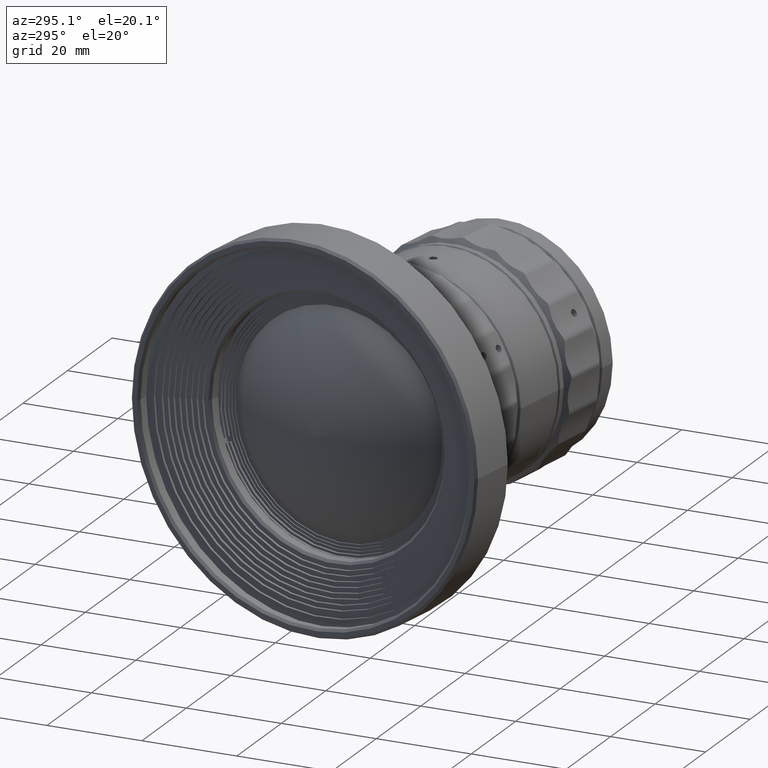
[diagram: clean part render]
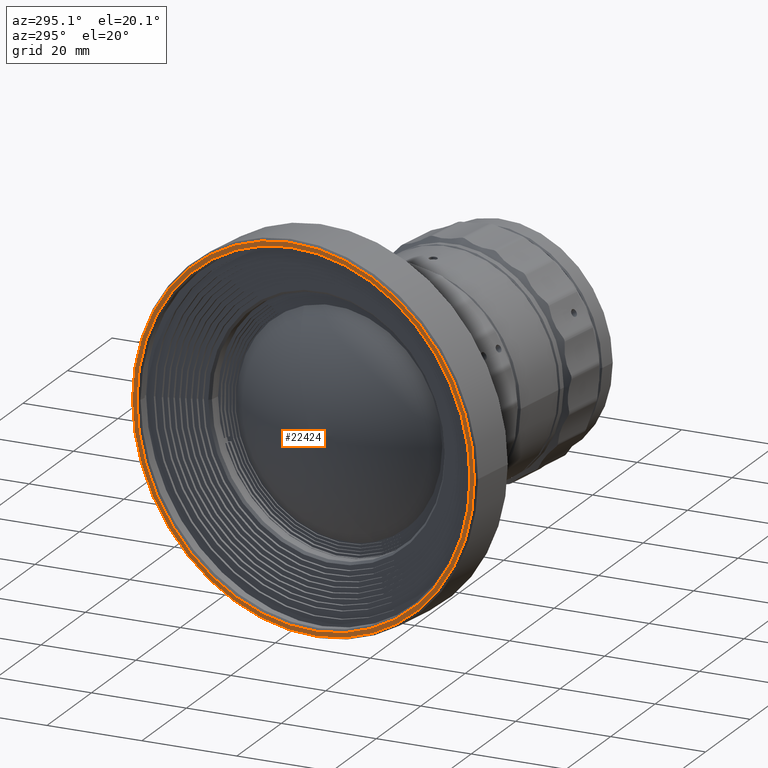
[diagram: same view with one face highlighted and labeled with its STEP entity id]
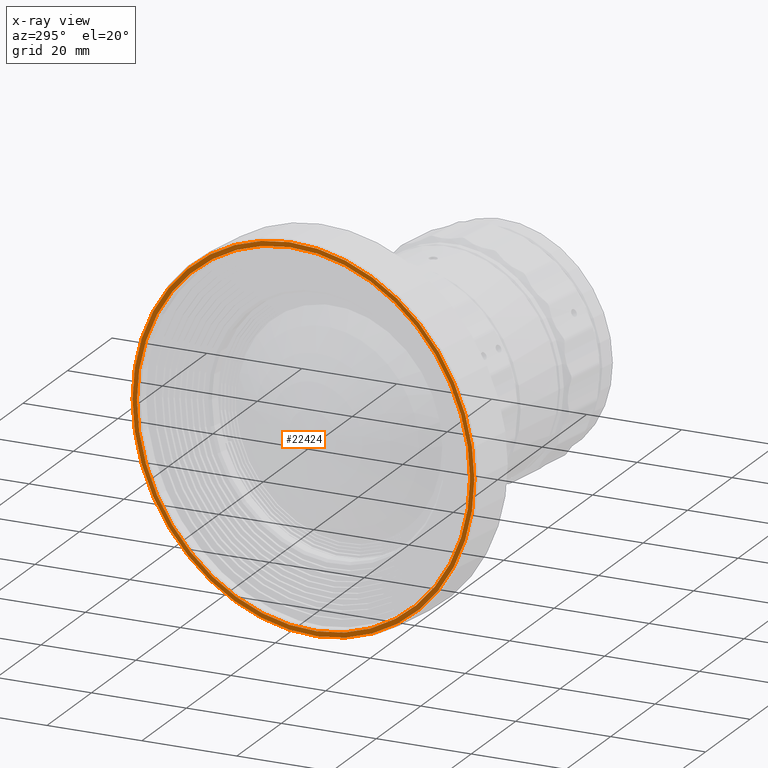
[diagram: x-ray of the same camera — body ghosted, the highlighted face saturated]
A machine part, auxiliary view. The second image highlights one B-rep face of the part: STEP entity #22424.
The next image is the same camera in x-ray: the body ghosted, the highlighted face saturated — about 0% of this face is hidden behind the body in this view.
In plain terms, the highlighted planar face has unit normal (0.9869, -0.1612, 0).
Its self-contained STEP definition (entity closure, byte-faithful):
#235 = FACE_OUTER_BOUND ( 'NONE', #42756, .T. ) ;
#337 = CARTESIAN_POINT ( 'NONE',  ( 100.7508754868545964, -25.57386101788690169, -18.29668510068000131 ) ) ;
#2143 = CIRCLE ( 'NONE', #53522, 38.49980199999998831 ) ;
#4830 = DIRECTION ( 'NONE',  ( 0.9869211278471834436, -0.1612038690876970715, 0.000000000000000000 ) ) ;
#6033 = VERTEX_POINT ( 'NONE', #33930 ) ;
#8167 = DIRECTION ( 'NONE',  ( -0.9869211278471834436, 0.1612038690876970715, 0.000000000000000000 ) ) ;
#8189 = CIRCLE ( 'NONE', #25335, 39.49980200000001673 ) ;
#9776 = DIRECTION ( 'NONE',  ( 0.9869211278471834436, -0.1612038690876969049, 0.000000000000000000 ) ) ;
#10814 = DIRECTION ( 'NONE',  ( 0.1612038690876967939, 0.9869211278471835547, 0.000000000000000000 ) ) ;
#11325 = DIRECTION ( 'NONE',  ( -0.9869211278471835547, 0.1612038690876969049, 0.000000000000000000 ) ) ;
#14235 = CARTESIAN_POINT ( 'NONE',  ( 100.7508754868545964, -25.57386101788690169, -18.29668510068000131 ) ) ;
#14936 = EDGE_CURVE ( 'NONE', #39987, #6033, #15041, .T. ) ;
#15041 = CIRCLE ( 'NONE', #51160, 39.49980200000001673 ) ;
#19177 = CARTESIAN_POINT ( 'NONE',  ( 100.7508754868545964, -25.57386101788690169, -18.29668510068000131 ) ) ;
#20551 = ORIENTED_EDGE ( 'NONE', *, *, #43315, .F. ) ;
#22321 = FACE_BOUND ( 'NONE', #46509, .T. ) ;
#22424 = ADVANCED_FACE ( 'NONE', ( #22321, #235 ), #55006, .F. ) ;
#23027 = DIRECTION ( 'NONE',  ( 0.1612038690876970992, 0.9869211278471834436, 0.000000000000000000 ) ) ;
#25335 = AXIS2_PLACEMENT_3D ( 'NONE', #19177, #51590, #10814 ) ;
#25786 = ORIENTED_EDGE ( 'NONE', *, *, #14936, .T. ) ;
#26024 = EDGE_CURVE ( 'NONE', #45744, #32912, #2143, .T. ) ;
#26074 = CARTESIAN_POINT ( 'NONE',  ( 100.7508754868545964, -25.57386101788690169, -18.29668510068000131 ) ) ;
#27963 = DIRECTION ( 'NONE',  ( 0.000000000000000000, 0.000000000000000000, -1.000000000000000000 ) ) ;
#28108 = ORIENTED_EDGE ( 'NONE', *, *, #54633, .F. ) ;
#32912 = VERTEX_POINT ( 'NONE', #33137 ) ;
#33137 = CARTESIAN_POINT ( 'NONE',  ( 94.54455844534430753, -63.57012902962009804, -18.29668510068000131 ) ) ;
#33930 = CARTESIAN_POINT ( 'NONE',  ( 94.38335457625660752, -64.55705015746728748, -18.29668510068000131 ) ) ;
#33958 = DIRECTION ( 'NONE',  ( 0.1612038690876967939, 0.9869211278471835547, 0.000000000000000000 ) ) ;
#34345 = AXIS2_PLACEMENT_3D ( 'NONE', #14235, #9776, #27963 ) ;
#34368 = AXIS2_PLACEMENT_3D ( 'NONE', #26074, #8167, #49265 ) ;
#39987 = VERTEX_POINT ( 'NONE', #56487 ) ;
#41483 = CARTESIAN_POINT ( 'NONE',  ( 100.7508754868545964, -25.57386101788690169, -18.29668510068000131 ) ) ;
#42756 = EDGE_LOOP ( 'NONE', ( #20551, #25786 ) ) ;
#43315 = EDGE_CURVE ( 'NONE', #39987, #6033, #8189, .T. ) ;
#45005 = ORIENTED_EDGE ( 'NONE', *, *, #26024, .T. ) ;
#45744 = VERTEX_POINT ( 'NONE', #54813 ) ;
#46509 = EDGE_LOOP ( 'NONE', ( #28108, #45005 ) ) ;
#49265 = DIRECTION ( 'NONE',  ( 0.1612038690876970992, 0.9869211278471834436, 0.000000000000000000 ) ) ;
#49601 = CIRCLE ( 'NONE', #34368, 38.49980199999998831 ) ;
#51160 = AXIS2_PLACEMENT_3D ( 'NONE', #337, #11325, #33958 ) ;
#51590 = DIRECTION ( 'NONE',  ( 0.9869211278471835547, -0.1612038690876969049, 0.000000000000000000 ) ) ;
#53522 = AXIS2_PLACEMENT_3D ( 'NONE', #41483, #4830, #23027 ) ;
#54633 = EDGE_CURVE ( 'NONE', #45744, #32912, #49601, .T. ) ;
#54813 = CARTESIAN_POINT ( 'NONE',  ( 106.9571925283648000, 12.42240699384636216, -18.29668510068000131 ) ) ;
#55006 = PLANE ( 'NONE',  #34345 ) ;
#56487 = CARTESIAN_POINT ( 'NONE',  ( 107.1183963974524005, 13.40932812169353916, -18.29668510068000131 ) ) ;